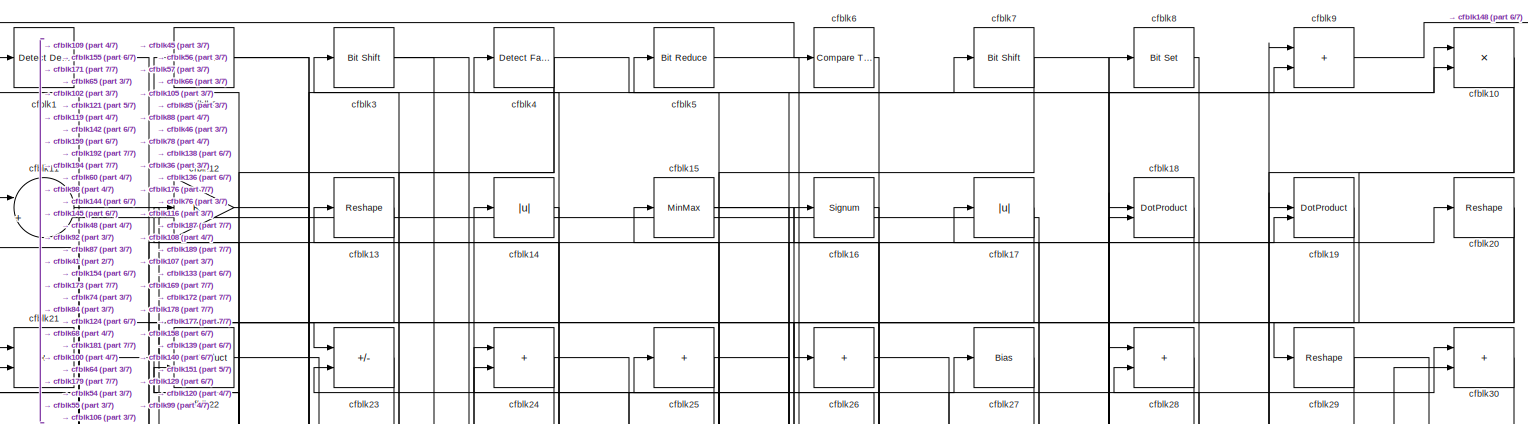
[diagram: root canvas - part 1/7, full width, top band]
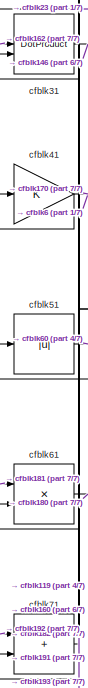
[diagram: root canvas - part 2/7, top left region]
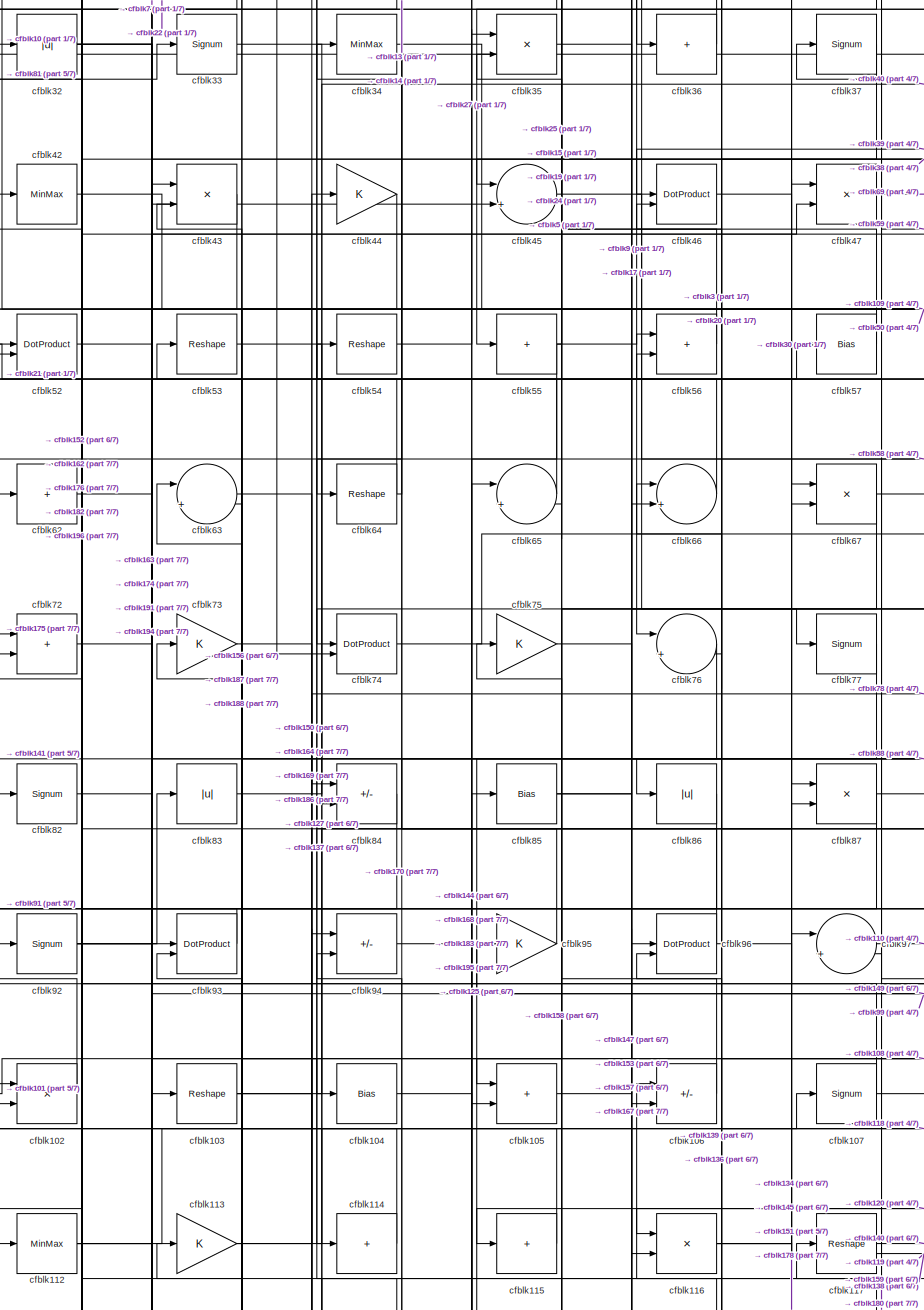
[diagram: root canvas - part 3/7, central region]
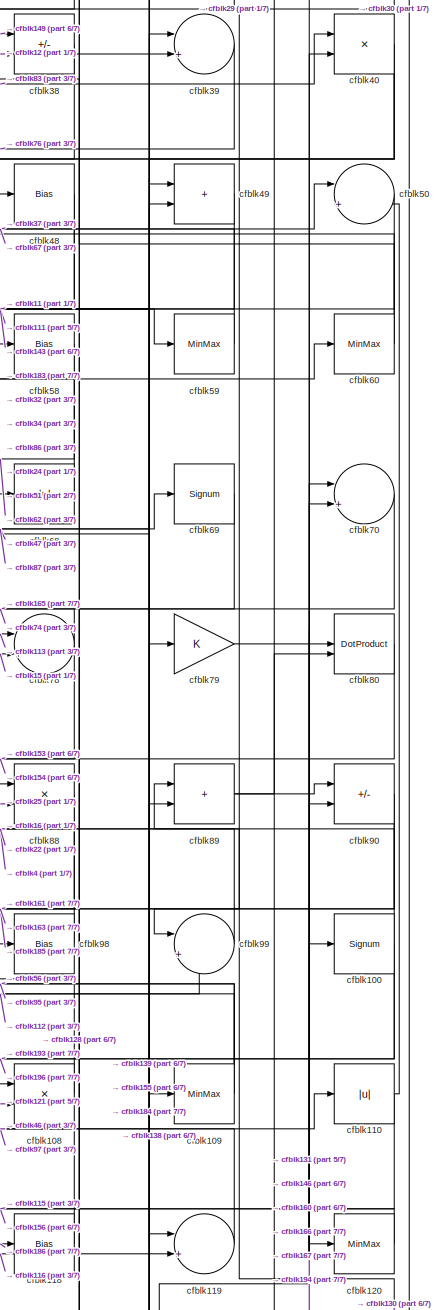
[diagram: root canvas - part 4/7, middle right region]
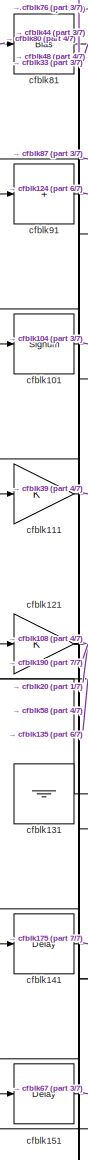
[diagram: root canvas - part 5/7, middle left region]
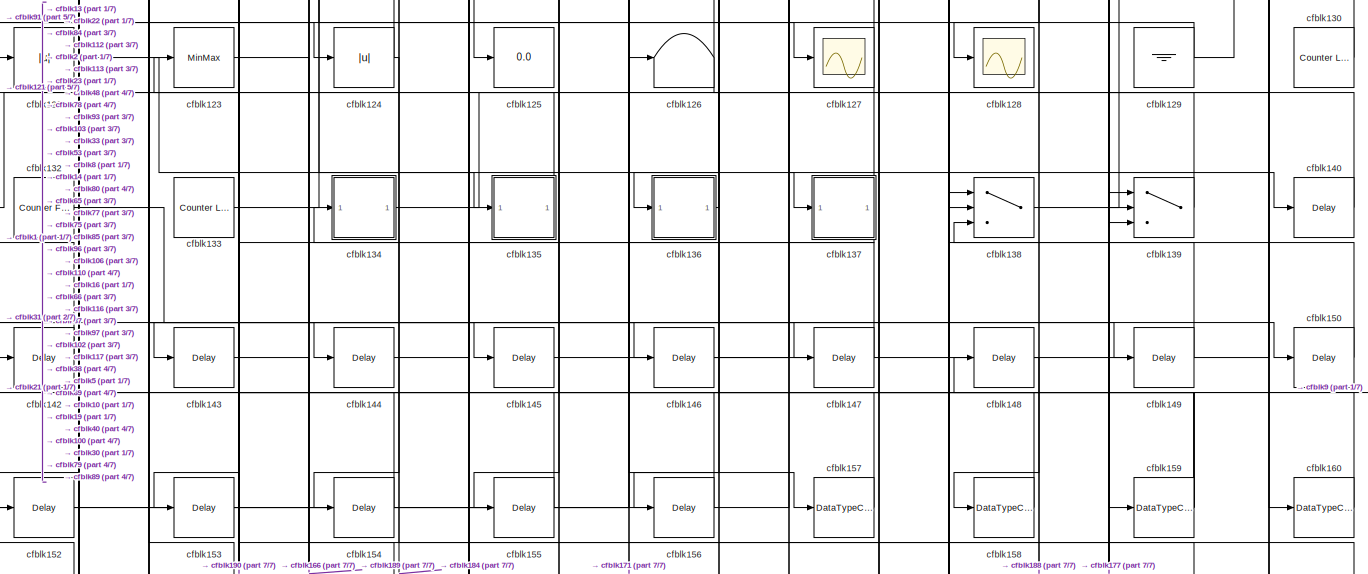
[diagram: root canvas - part 6/7, full width, bottom band]
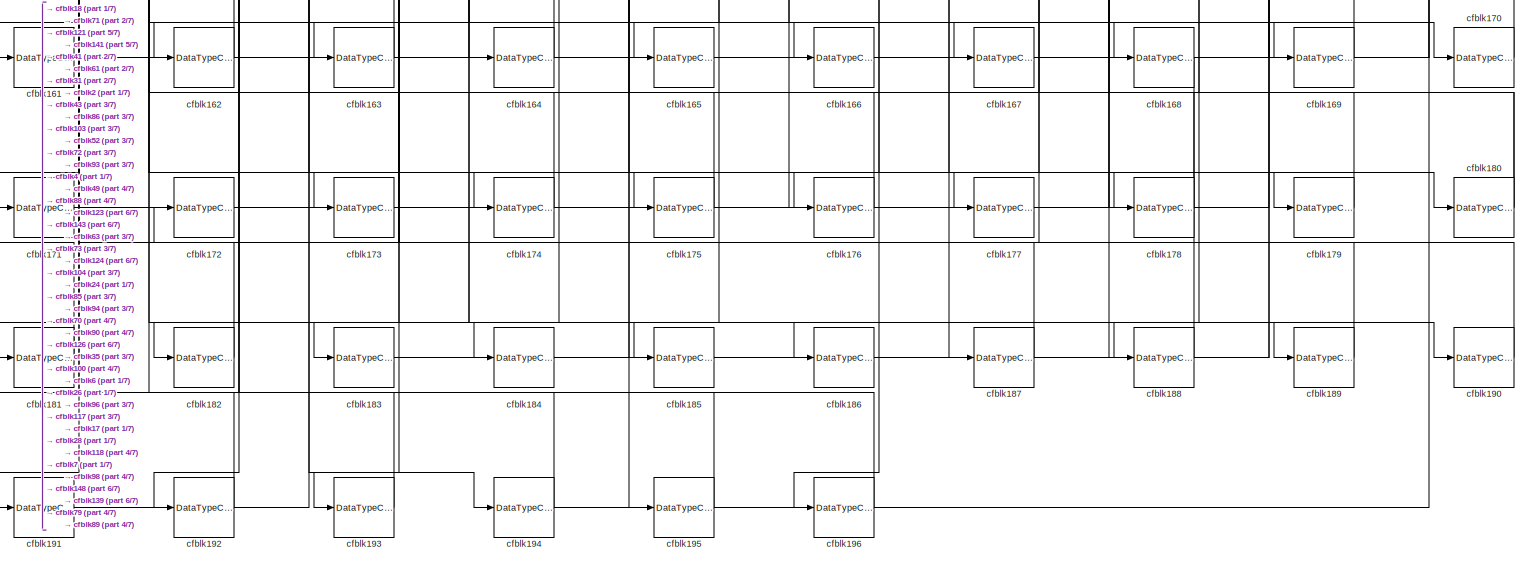
[diagram: root canvas - part 7/7, full width, bottom band]
MODEL slx_3617189a8219
KIND model
CONFIG AbsTol = auto
CONFIG EnableMultiTasking = off
CONFIG FixedStep = auto
CONFIG MaxStep = auto
CONFIG MinStep = auto
CONFIG RelTol = 1e-3
CONFIG SampleTimeConstraint = Unconstrained
CONFIG SolverName = VariableStepAuto
CONFIG StartTime = 0.0
CONFIG StopTime = 10.0
BLOCK [Reference] cfblk1  REF=simulink/Logic and Bit
Operations/Detect
Decrease
  LibrarySourceBlock = hdlsllib/Logic and Bit\nOperations/Detect\nDecrease
  SourceBlock = simulink/Logic and Bit\nOperations/Detect\nDecrease
  SourceType = Detect Decrease
BLOCK [Product] cfblk10
  Inputs = */
  RndMeth = Zero
  SaturateOnIntegerOverflow = on
BLOCK [Signum] cfblk100
BLOCK [Signum] cfblk101
BLOCK [Product] cfblk102
  Inputs = */
  RndMeth = Zero
  SaturateOnIntegerOverflow = on
BLOCK [Reshape] cfblk103
BLOCK [Bias] cfblk104
  Bias = 0.0
  SaturateOnIntegerOverflow = off
BLOCK [Sum] cfblk105
  IconShape = rectangular
BLOCK [Sum] cfblk106
  IconShape = rectangular
  Inputs = +-
BLOCK [Signum] cfblk107
BLOCK [Product] cfblk108
  Inputs = */
  RndMeth = Zero
  SaturateOnIntegerOverflow = on
BLOCK [MinMax] cfblk109
BLOCK [Sum] cfblk11
  Inputs = |++
BLOCK [Abs] cfblk110
  SaturateOnIntegerOverflow = off
BLOCK [Gain] cfblk111
BLOCK [MinMax] cfblk112
BLOCK [Gain] cfblk113
BLOCK [Sum] cfblk114
  IconShape = rectangular
  Inputs = +
BLOCK [Sum] cfblk115
  IconShape = rectangular
  Inputs = +
BLOCK [Product] cfblk116
  Inputs = */
  RndMeth = Zero
  SaturateOnIntegerOverflow = on
BLOCK [Reshape] cfblk117
BLOCK [Bias] cfblk118
  Bias = 0.0
  SaturateOnIntegerOverflow = off
BLOCK [Sum] cfblk119
  Inputs = |++
BLOCK [Gain] cfblk12
BLOCK [MinMax] cfblk120
BLOCK [Gain] cfblk121
BLOCK [Abs] cfblk122
  SaturateOnIntegerOverflow = off
BLOCK [MinMax] cfblk123
BLOCK [Abs] cfblk124
  SaturateOnIntegerOverflow = off
BLOCK [Display] cfblk125
  Decimation = 1
BLOCK [Terminator] cfblk126
BLOCK [Scope] cfblk127
  Floating = off
  NumInputPorts = 1
  ScopeSpecificationString = Simulink.scopes.TimeScopeBlockCfg('CurrentConfiguration', extmgr.ConfigurationSet(extmgr.Configuration('Core','General UI',true),extmgr.Configuration('Core','Source UI',true),extmgr.Configuration('Sources','WiredSimulink',true,'DataLoggingVariableName','ScopeData2','DataLoggingSaveFormat','Array','DataLoggingLimitDataPoints',true,'DataLoggingDecimation','1'),extmgr.Configuration('Visuals','Time Do...<+868ch>
BLOCK [Scope] cfblk128
  Floating = off
  NumInputPorts = 1
  ScopeSpecificationString = Simulink.scopes.TimeScopeBlockCfg('CurrentConfiguration', extmgr.ConfigurationSet(extmgr.Configuration('Core','General UI',true),extmgr.Configuration('Core','Source UI',true),extmgr.Configuration('Sources','WiredSimulink',true,'DataLoggingVariableName','ScopeData2','DataLoggingSaveFormat','Array','DataLoggingLimitDataPoints',true,'DataLoggingDecimation','1'),extmgr.Configuration('Visuals','Time Do...<+868ch>
BLOCK [Ground] cfblk129
BLOCK [Reshape] cfblk13
BLOCK [Reference] cfblk130  REF=hdlsllib/Sources/Counter
Limited
  SourceBlock = hdlsllib/Sources/Counter\nLimited
  SourceType = Counter Limited
BLOCK [Ground] cfblk131
BLOCK [Reference] cfblk132  REF=hdlsllib/Sources/Counter
Free-Running
  SourceBlock = hdlsllib/Sources/Counter\nFree-Running
  SourceType = Counter Free-Running
BLOCK [Reference] cfblk133  REF=hdlsllib/Sources/Counter
Limited
  SourceBlock = hdlsllib/Sources/Counter\nLimited
  SourceType = Counter Limited
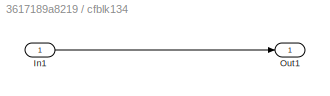
BLOCK [SubSystem] cfblk134
  LibrarySourceBlock = hdlsllib/Ports &\nSubsystems/Subsystem
BLOCK [Inport] cfblk134/In1
BLOCK [Outport] cfblk134/Out1
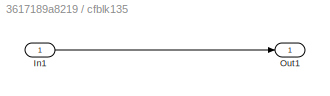
BLOCK [SubSystem] cfblk135
  LibrarySourceBlock = hdlsllib/Ports &\nSubsystems/Subsystem
BLOCK [Inport] cfblk135/In1
BLOCK [Outport] cfblk135/Out1
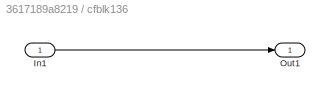
BLOCK [SubSystem] cfblk136
  LibrarySourceBlock = hdlsllib/Ports &\nSubsystems/Subsystem
BLOCK [Inport] cfblk136/In1
BLOCK [Outport] cfblk136/Out1
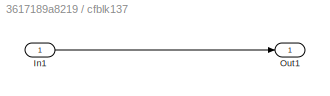
BLOCK [SubSystem] cfblk137
  LibrarySourceBlock = hdlsllib/Ports &\nSubsystems/Subsystem
BLOCK [Inport] cfblk137/In1
BLOCK [Outport] cfblk137/Out1
BLOCK [Switch] cfblk138
  InputSameDT = off
  SaturateOnIntegerOverflow = off
BLOCK [Switch] cfblk139
  InputSameDT = off
  SaturateOnIntegerOverflow = off
BLOCK [Abs] cfblk14
  SaturateOnIntegerOverflow = off
BLOCK [Delay] cfblk140
  InputPortMap = u0
  SampleTime = 1
BLOCK [Delay] cfblk141
  InputPortMap = u0
  SampleTime = 1
BLOCK [Delay] cfblk142
  InputPortMap = u0
  SampleTime = 1
BLOCK [Delay] cfblk143
  InputPortMap = u0
  SampleTime = 1
BLOCK [Delay] cfblk144
  InputPortMap = u0
  SampleTime = 1
BLOCK [Delay] cfblk145
  InputPortMap = u0
  SampleTime = 1
BLOCK [Delay] cfblk146
  InputPortMap = u0
  SampleTime = 1
BLOCK [Delay] cfblk147
  InputPortMap = u0
  SampleTime = 1
BLOCK [Delay] cfblk148
  InputPortMap = u0
  SampleTime = 1
BLOCK [Delay] cfblk149
  InputPortMap = u0
  SampleTime = 1
BLOCK [MinMax] cfblk15
BLOCK [Delay] cfblk150
  InputPortMap = u0
  SampleTime = 1
BLOCK [Delay] cfblk151
  InputPortMap = u0
  SampleTime = 1
BLOCK [Delay] cfblk152
  InputPortMap = u0
  SampleTime = 1
BLOCK [Delay] cfblk153
  InputPortMap = u0
  SampleTime = 1
BLOCK [Delay] cfblk154
  InputPortMap = u0
  SampleTime = 1
BLOCK [Delay] cfblk155
  InputPortMap = u0
  SampleTime = 1
BLOCK [Delay] cfblk156
  InputPortMap = u0
  SampleTime = 1
BLOCK [DataTypeConversion] cfblk157
  OutDataTypeStr = uint8
  RndMeth = Floor
  SaturateOnIntegerOverflow = off
BLOCK [DataTypeConversion] cfblk158
  OutDataTypeStr = uint8
  RndMeth = Floor
  SaturateOnIntegerOverflow = off
BLOCK [DataTypeConversion] cfblk159
  RndMeth = Floor
  SaturateOnIntegerOverflow = off
BLOCK [Signum] cfblk16
BLOCK [DataTypeConversion] cfblk160
  OutDataTypeStr = uint8
  RndMeth = Floor
  SaturateOnIntegerOverflow = off
BLOCK [DataTypeConversion] cfblk161
  OutDataTypeStr = uint8
  RndMeth = Floor
  SaturateOnIntegerOverflow = off
BLOCK [DataTypeConversion] cfblk162
  OutDataTypeStr = uint8
  RndMeth = Floor
  SaturateOnIntegerOverflow = off
BLOCK [DataTypeConversion] cfblk163
  OutDataTypeStr = uint8
  RndMeth = Floor
  SaturateOnIntegerOverflow = off
BLOCK [DataTypeConversion] cfblk164
  OutDataTypeStr = uint8
  RndMeth = Floor
  SaturateOnIntegerOverflow = off
BLOCK [DataTypeConversion] cfblk165
  RndMeth = Floor
  SaturateOnIntegerOverflow = off
BLOCK [DataTypeConversion] cfblk166
  OutDataTypeStr = uint8
  RndMeth = Floor
  SaturateOnIntegerOverflow = off
BLOCK [DataTypeConversion] cfblk167
  OutDataTypeStr = uint8
  RndMeth = Floor
  SaturateOnIntegerOverflow = off
BLOCK [DataTypeConversion] cfblk168
  OutDataTypeStr = uint8
  RndMeth = Floor
  SaturateOnIntegerOverflow = off
BLOCK [DataTypeConversion] cfblk169
  OutDataTypeStr = uint8
  RndMeth = Floor
  SaturateOnIntegerOverflow = off
BLOCK [Abs] cfblk17
  SaturateOnIntegerOverflow = off
BLOCK [DataTypeConversion] cfblk170
  OutDataTypeStr = uint8
  RndMeth = Floor
  SaturateOnIntegerOverflow = off
BLOCK [DataTypeConversion] cfblk171
  OutDataTypeStr = uint8
  RndMeth = Floor
  SaturateOnIntegerOverflow = off
BLOCK [DataTypeConversion] cfblk172
  OutDataTypeStr = uint8
  RndMeth = Floor
  SaturateOnIntegerOverflow = off
BLOCK [DataTypeConversion] cfblk173
  OutDataTypeStr = uint8
  RndMeth = Floor
  SaturateOnIntegerOverflow = off
BLOCK [DataTypeConversion] cfblk174
  OutDataTypeStr = uint8
  RndMeth = Floor
  SaturateOnIntegerOverflow = off
BLOCK [DataTypeConversion] cfblk175
  OutDataTypeStr = uint8
  RndMeth = Floor
  SaturateOnIntegerOverflow = off
BLOCK [DataTypeConversion] cfblk176
  OutDataTypeStr = uint8
  RndMeth = Floor
  SaturateOnIntegerOverflow = off
BLOCK [DataTypeConversion] cfblk177
  OutDataTypeStr = uint8
  RndMeth = Floor
  SaturateOnIntegerOverflow = off
BLOCK [DataTypeConversion] cfblk178
  OutDataTypeStr = uint8
  RndMeth = Floor
  SaturateOnIntegerOverflow = off
BLOCK [DataTypeConversion] cfblk179
  OutDataTypeStr = uint8
  RndMeth = Floor
  SaturateOnIntegerOverflow = off
BLOCK [DotProduct] cfblk18
  OutDataTypeStr = Inherit: Inherit via internal rule
BLOCK [DataTypeConversion] cfblk180
  RndMeth = Floor
  SaturateOnIntegerOverflow = off
BLOCK [DataTypeConversion] cfblk181
  OutDataTypeStr = uint8
  RndMeth = Floor
  SaturateOnIntegerOverflow = off
BLOCK [DataTypeConversion] cfblk182
  OutDataTypeStr = uint8
  RndMeth = Floor
  SaturateOnIntegerOverflow = off
BLOCK [DataTypeConversion] cfblk183
  OutDataTypeStr = uint8
  RndMeth = Floor
  SaturateOnIntegerOverflow = off
BLOCK [DataTypeConversion] cfblk184
  OutDataTypeStr = uint8
  RndMeth = Floor
  SaturateOnIntegerOverflow = off
BLOCK [DataTypeConversion] cfblk185
  OutDataTypeStr = uint8
  RndMeth = Floor
  SaturateOnIntegerOverflow = off
BLOCK [DataTypeConversion] cfblk186
  OutDataTypeStr = uint8
  RndMeth = Floor
  SaturateOnIntegerOverflow = off
BLOCK [DataTypeConversion] cfblk187
  OutDataTypeStr = uint8
  RndMeth = Floor
  SaturateOnIntegerOverflow = off
BLOCK [DataTypeConversion] cfblk188
  OutDataTypeStr = uint8
  RndMeth = Floor
  SaturateOnIntegerOverflow = off
BLOCK [DataTypeConversion] cfblk189
  OutDataTypeStr = uint8
  RndMeth = Floor
  SaturateOnIntegerOverflow = off
BLOCK [DotProduct] cfblk19
  OutDataTypeStr = Inherit: Inherit via internal rule
BLOCK [DataTypeConversion] cfblk190
  OutDataTypeStr = uint8
  RndMeth = Floor
  SaturateOnIntegerOverflow = off
BLOCK [DataTypeConversion] cfblk191
  OutDataTypeStr = uint8
  RndMeth = Floor
  SaturateOnIntegerOverflow = off
BLOCK [DataTypeConversion] cfblk192
  OutDataTypeStr = uint8
  RndMeth = Floor
  SaturateOnIntegerOverflow = off
BLOCK [DataTypeConversion] cfblk193
  OutDataTypeStr = uint8
  RndMeth = Floor
  SaturateOnIntegerOverflow = off
BLOCK [DataTypeConversion] cfblk194
  RndMeth = Floor
  SaturateOnIntegerOverflow = off
BLOCK [DataTypeConversion] cfblk195
  OutDataTypeStr = uint8
  RndMeth = Floor
  SaturateOnIntegerOverflow = off
BLOCK [DataTypeConversion] cfblk196
  OutDataTypeStr = uint8
  RndMeth = Floor
  SaturateOnIntegerOverflow = off
BLOCK [Reference] cfblk2  REF=simulink/Logic and Bit
Operations/Extract Bits
  LibrarySourceBlock = hdlsllib/Logic and Bit\nOperations/Extract Bits
  SourceBlock = simulink/Logic and Bit\nOperations/Extract Bits
  SourceType = Extract Bits
BLOCK [Reshape] cfblk20
BLOCK [Sum] cfblk21
  IconShape = rectangular
BLOCK [DotProduct] cfblk22
  OutDataTypeStr = Inherit: Inherit via internal rule
BLOCK [Sum] cfblk23
  IconShape = rectangular
  Inputs = +-
BLOCK [Sum] cfblk24
  IconShape = rectangular
BLOCK [Sum] cfblk25
  IconShape = rectangular
  Inputs = +
BLOCK [Sum] cfblk26
  IconShape = rectangular
  Inputs = +
BLOCK [Bias] cfblk27
  Bias = 0.0
  SaturateOnIntegerOverflow = off
BLOCK [Sum] cfblk28
  IconShape = rectangular
BLOCK [Reshape] cfblk29
BLOCK [Reference] cfblk3  REF=hdlsllib/Logic and Bit
Operations/Bit Shift
  SourceBlock = hdlsllib/Logic and Bit\nOperations/Bit Shift
  SourceType = Bit Shift
BLOCK [Sum] cfblk30
  IconShape = rectangular
BLOCK [DotProduct] cfblk31
  OutDataTypeStr = Inherit: Inherit via internal rule
BLOCK [Abs] cfblk32
  SaturateOnIntegerOverflow = off
BLOCK [Signum] cfblk33
BLOCK [MinMax] cfblk34
BLOCK [Product] cfblk35
  Inputs = */
  RndMeth = Zero
  SaturateOnIntegerOverflow = on
BLOCK [Sum] cfblk36
  IconShape = rectangular
  Inputs = +
BLOCK [Signum] cfblk37
BLOCK [Sum] cfblk38
  IconShape = rectangular
  Inputs = +-
BLOCK [Sum] cfblk39
  Inputs = |++
BLOCK [Reference] cfblk4  REF=hdlsllib/Logic and Bit
Operations/Detect Fall
Negative
  SourceBlock = hdlsllib/Logic and Bit\nOperations/Detect Fall\nNegative
  SourceType = Detect Fall Negative
BLOCK [Product] cfblk40
  Inputs = */
  RndMeth = Zero
  SaturateOnIntegerOverflow = on
BLOCK [Gain] cfblk41
BLOCK [MinMax] cfblk42
BLOCK [Product] cfblk43
  Inputs = */
  RndMeth = Zero
  SaturateOnIntegerOverflow = on
BLOCK [Gain] cfblk44
BLOCK [Sum] cfblk45
  Inputs = |++
BLOCK [DotProduct] cfblk46
  OutDataTypeStr = Inherit: Inherit via internal rule
BLOCK [Product] cfblk47
  Inputs = */
  RndMeth = Zero
  SaturateOnIntegerOverflow = on
BLOCK [Bias] cfblk48
  Bias = 0.0
  SaturateOnIntegerOverflow = off
BLOCK [Sum] cfblk49
  IconShape = rectangular
BLOCK [Reference] cfblk5  REF=hdlsllib/Logic and Bit
Operations/Bit Reduce
  SourceBlock = hdlsllib/Logic and Bit\nOperations/Bit Reduce
  SourceType = Bit Reduce
BLOCK [Sum] cfblk50
  Inputs = |++
BLOCK [Abs] cfblk51
  SaturateOnIntegerOverflow = off
BLOCK [DotProduct] cfblk52
  OutDataTypeStr = Inherit: Inherit via internal rule
BLOCK [Reshape] cfblk53
BLOCK [Reshape] cfblk54
BLOCK [Sum] cfblk55
  IconShape = rectangular
  Inputs = +
BLOCK [Sum] cfblk56
  IconShape = rectangular
BLOCK [Bias] cfblk57
  Bias = 0.0
  SaturateOnIntegerOverflow = off
BLOCK [Bias] cfblk58
  Bias = 0.0
  SaturateOnIntegerOverflow = off
BLOCK [MinMax] cfblk59
BLOCK [Reference] cfblk6  REF=hdlsllib/Logic and Bit
Operations/Compare
To Zero
  SourceBlock = hdlsllib/Logic and Bit\nOperations/Compare\nTo Zero
  SourceType = Compare To Zero
BLOCK [MinMax] cfblk60
BLOCK [Product] cfblk61
  Inputs = */
  RndMeth = Zero
  SaturateOnIntegerOverflow = on
BLOCK [Sum] cfblk62
  IconShape = rectangular
  Inputs = +
BLOCK [Sum] cfblk63
  Inputs = |++
BLOCK [Reshape] cfblk64
BLOCK [Sum] cfblk65
  Inputs = |++
BLOCK [Sum] cfblk66
  Inputs = |++
BLOCK [Product] cfblk67
  Inputs = */
  RndMeth = Zero
  SaturateOnIntegerOverflow = on
BLOCK [Abs] cfblk68
  SaturateOnIntegerOverflow = off
BLOCK [Signum] cfblk69
BLOCK [Reference] cfblk7  REF=hdlsllib/Logic and Bit
Operations/Bit Shift
  SourceBlock = hdlsllib/Logic and Bit\nOperations/Bit Shift
  SourceType = Bit Shift
BLOCK [Sum] cfblk70
  Inputs = |++
BLOCK [Sum] cfblk71
  IconShape = rectangular
BLOCK [Sum] cfblk72
  IconShape = rectangular
BLOCK [Gain] cfblk73
BLOCK [DotProduct] cfblk74
  OutDataTypeStr = Inherit: Inherit via internal rule
BLOCK [Gain] cfblk75
BLOCK [Sum] cfblk76
  Inputs = |++
BLOCK [Signum] cfblk77
BLOCK [Sum] cfblk78
  Inputs = |++
BLOCK [Gain] cfblk79
BLOCK [Reference] cfblk8  REF=simulink/Logic and Bit
Operations/Bit Set
  LibrarySourceBlock = hdlsllib/Logic and Bit\nOperations/Bit Set
  SourceBlock = simulink/Logic and Bit\nOperations/Bit Set
  SourceType = Bit Set
BLOCK [DotProduct] cfblk80
  OutDataTypeStr = Inherit: Inherit via internal rule
BLOCK [Bias] cfblk81
  Bias = 0.0
  SaturateOnIntegerOverflow = off
BLOCK [Signum] cfblk82
BLOCK [Abs] cfblk83
  SaturateOnIntegerOverflow = off
BLOCK [Sum] cfblk84
  IconShape = rectangular
  Inputs = +-
BLOCK [Bias] cfblk85
  Bias = 0.0
  SaturateOnIntegerOverflow = off
BLOCK [Abs] cfblk86
  SaturateOnIntegerOverflow = off
BLOCK [Product] cfblk87
  Inputs = */
  RndMeth = Zero
  SaturateOnIntegerOverflow = on
BLOCK [Product] cfblk88
  Inputs = */
  RndMeth = Zero
  SaturateOnIntegerOverflow = on
BLOCK [Sum] cfblk89
  IconShape = rectangular
BLOCK [Sum] cfblk9
  IconShape = rectangular
BLOCK [Sum] cfblk90
  IconShape = rectangular
  Inputs = +-
BLOCK [Sum] cfblk91
  IconShape = rectangular
  Inputs = +
BLOCK [Signum] cfblk92
BLOCK [DotProduct] cfblk93
  OutDataTypeStr = Inherit: Inherit via internal rule
BLOCK [Sum] cfblk94
  IconShape = rectangular
  Inputs = +-
BLOCK [Gain] cfblk95
BLOCK [DotProduct] cfblk96
  OutDataTypeStr = Inherit: Inherit via internal rule
BLOCK [Sum] cfblk97
  Inputs = |++
BLOCK [Bias] cfblk98
  Bias = 0.0
  SaturateOnIntegerOverflow = off
BLOCK [Sum] cfblk99
  Inputs = |++
NET cfblk100:1 -> cfblk193:1, cfblk196:1, cfblk4:1
LINE cfblk101:1 -> cfblk104:1
LINE cfblk102:1 -> cfblk82:1
NET cfblk103:1 -> cfblk150:1, cfblk47:1
LINE cfblk104:1 -> cfblk195:1
LINE cfblk105:1 -> cfblk19:2
LINE cfblk106:1 -> cfblk15:1
NET cfblk107:1 -> cfblk10:1, cfblk32:1
LINE cfblk108:1 -> cfblk11:2
NET cfblk109:1 -> cfblk11:1, cfblk56:2, cfblk95:1
NET cfblk10:1 -> cfblk139:3, cfblk29:1
NET cfblk110:1 -> cfblk156:1, cfblk50:2
LINE cfblk111:1 -> cfblk39:2
NET cfblk112:1 -> cfblk149:1, cfblk44:1, cfblk99:2
NET cfblk113:1 -> cfblk107:1, cfblk78:1
LINE cfblk114:1 -> cfblk73:1
LINE cfblk115:1 -> cfblk42:1
NET cfblk116:1 -> cfblk119:2, cfblk138:2, cfblk30:1
LINE cfblk117:1 -> cfblk140:1
LINE cfblk118:1 -> cfblk46:2
LINE cfblk119:1 -> cfblk51:1
LINE cfblk11:1 -> cfblk119:1
LINE cfblk120:1 -> cfblk115:1
NET cfblk121:1 -> cfblk108:2, cfblk190:1, cfblk20:1, cfblk58:1
LINE cfblk122:1 -> cfblk135:1
LINE cfblk123:1 -> cfblk189:1
NET cfblk124:1 -> cfblk14:1, cfblk184:1
NET cfblk129:1 -> cfblk122:1, cfblk30:2
LINE cfblk12:1 -> cfblk48:1
LINE cfblk130:1 -> cfblk89:1
NET cfblk131:1 -> cfblk80:1, cfblk81:1
LINE cfblk132:1 -> cfblk159:1
LINE cfblk133:1 -> cfblk8:1
LINE cfblk134/In1:1 -> cfblk134/Out1:1
LINE cfblk134:1 -> cfblk97:1
LINE cfblk135/In1:1 -> cfblk135/Out1:1
LINE cfblk135:1 -> cfblk121:1
LINE cfblk136/In1:1 -> cfblk136/Out1:1
LINE cfblk136:1 -> cfblk66:1
LINE cfblk137/In1:1 -> cfblk137/Out1:1
NET cfblk137:1 -> cfblk102:1, cfblk134:1
LINE cfblk138:1 -> cfblk100:1
LINE cfblk139:1 -> cfblk106:1
LINE cfblk13:1 -> cfblk142:1
LINE cfblk140:1 -> cfblk19:1
LINE cfblk141:1 -> cfblk175:1
LINE cfblk142:1 -> cfblk1:1
LINE cfblk143:1 -> cfblk166:1
LINE cfblk144:1 -> cfblk65:1
LINE cfblk145:1 -> cfblk87:2
LINE cfblk146:1 -> cfblk40:2
LINE cfblk147:1 -> cfblk93:2
LINE cfblk148:1 -> cfblk188:1
LINE cfblk149:1 -> cfblk38:1
LINE cfblk14:1 -> cfblk64:1
LINE cfblk150:1 -> cfblk138:3
LINE cfblk151:1 -> cfblk67:2
LINE cfblk152:1 -> cfblk106:2
LINE cfblk153:1 -> cfblk66:2
LINE cfblk154:1 -> cfblk23:2
LINE cfblk155:1 -> cfblk21:2
LINE cfblk156:1 -> cfblk53:1
LINE cfblk157:1 -> cfblk96:1
LINE cfblk158:1 -> cfblk75:1
NET cfblk159:1 -> cfblk113:1, cfblk22:2, cfblk96:2, cfblk97:2
NET cfblk15:1 -> cfblk36:1, cfblk78:2
LINE cfblk160:1 -> cfblk31:2
LINE cfblk161:1 -> cfblk79:1
LINE cfblk162:1 -> cfblk31:1
LINE cfblk163:1 -> cfblk43:1
LINE cfblk164:1 -> cfblk43:2
NET cfblk165:1 -> cfblk89:2, cfblk98:1
LINE cfblk166:1 -> cfblk70:1
LINE cfblk167:1 -> cfblk70:2
LINE cfblk168:1 -> cfblk172:1
LINE cfblk169:1 -> cfblk94:1
LINE cfblk16:1 -> cfblk136:1
LINE cfblk170:1 -> cfblk94:2
LINE cfblk171:1 -> cfblk126:1
LINE cfblk172:1 -> cfblk18:1
LINE cfblk173:1 -> cfblk18:2
LINE cfblk174:1 -> cfblk93:1
LINE cfblk175:1 -> cfblk72:1
LINE cfblk176:1 -> cfblk72:2
LINE cfblk177:1 -> cfblk139:1
LINE cfblk178:1 -> cfblk28:1
LINE cfblk179:1 -> cfblk28:2
LINE cfblk17:1 -> cfblk46:1
NET cfblk180:1 -> cfblk117:1, cfblk35:1
LINE cfblk181:1 -> cfblk61:1
LINE cfblk182:1 -> cfblk61:2
LINE cfblk183:1 -> cfblk85:1
LINE cfblk184:1 -> cfblk49:1
LINE cfblk185:1 -> cfblk49:2
LINE cfblk186:1 -> cfblk118:1
LINE cfblk187:1 -> cfblk63:1
LINE cfblk188:1 -> cfblk63:2
LINE cfblk189:1 -> cfblk17:1
LINE cfblk18:1 -> cfblk171:1
LINE cfblk190:1 -> cfblk123:1
LINE cfblk191:1 -> cfblk103:1
LINE cfblk192:1 -> cfblk71:1
LINE cfblk193:1 -> cfblk71:2
NET cfblk194:1 -> cfblk2:1, cfblk90:2
LINE cfblk195:1 -> cfblk52:1
LINE cfblk196:1 -> cfblk52:2
LINE cfblk19:1 -> cfblk65:2
LINE cfblk1:1 -> cfblk26:1
NET cfblk20:1 -> cfblk102:2, cfblk76:2
LINE cfblk21:1 -> cfblk23:1
LINE cfblk22:1 -> cfblk87:1
LINE cfblk23:1 -> cfblk41:1
NET cfblk24:1 -> cfblk179:1, cfblk181:1
NET cfblk25:1 -> cfblk55:1, cfblk88:2
LINE cfblk26:1 -> cfblk187:1
LINE cfblk27:1 -> cfblk116:2
LINE cfblk28:1 -> cfblk177:1
NET cfblk29:1 -> cfblk120:1, cfblk151:1
NET cfblk2:1 -> cfblk144:1, cfblk145:1
LINE cfblk30:1 -> cfblk99:1
LINE cfblk31:1 -> cfblk146:1
NET cfblk32:1 -> cfblk108:1, cfblk59:1, cfblk88:1
LINE cfblk33:1 -> cfblk127:1
LINE cfblk34:1 -> cfblk109:1
LINE cfblk35:1 -> cfblk167:1
LINE cfblk36:1 -> cfblk3:1
LINE cfblk37:1 -> cfblk116:1
LINE cfblk38:1 -> cfblk112:1
LINE cfblk39:1 -> cfblk76:1
NET cfblk3:1 -> cfblk74:2, cfblk84:1
NET cfblk40:1 -> cfblk139:2, cfblk155:1, cfblk68:1
NET cfblk41:1 -> cfblk170:1, cfblk6:1
LINE cfblk42:1 -> cfblk114:1
LINE cfblk43:1 -> cfblk162:1
LINE cfblk44:1 -> cfblk101:1
LINE cfblk45:1 -> cfblk77:1
LINE cfblk46:1 -> cfblk67:1
LINE cfblk47:1 -> cfblk69:1
NET cfblk48:1 -> cfblk111:1, cfblk143:1
LINE cfblk49:1 -> cfblk183:1
NET cfblk4:1 -> cfblk10:2, cfblk173:1, cfblk192:1
LINE cfblk50:1 -> cfblk86:1
LINE cfblk51:1 -> cfblk60:1
LINE cfblk52:1 -> cfblk194:1
LINE cfblk53:1 -> cfblk137:1
LINE cfblk54:1 -> cfblk27:1
NET cfblk55:1 -> cfblk105:2, cfblk35:2, cfblk56:1
LINE cfblk56:1 -> cfblk24:2
LINE cfblk57:1 -> cfblk25:1
LINE cfblk58:1 -> cfblk62:1
LINE cfblk59:1 -> cfblk37:1
LINE cfblk5:1 -> cfblk138:1
NET cfblk60:1 -> cfblk12:1, cfblk38:2
LINE cfblk61:1 -> cfblk180:1
LINE cfblk62:1 -> cfblk57:1
LINE cfblk63:1 -> cfblk186:1
NET cfblk64:1 -> cfblk13:1, cfblk54:1
LINE cfblk65:1 -> cfblk21:1
LINE cfblk66:1 -> cfblk5:1
NET cfblk67:1 -> cfblk105:1, cfblk50:1
LINE cfblk68:1 -> cfblk24:1
LINE cfblk69:1 -> cfblk128:1
LINE cfblk6:1 -> cfblk176:1
LINE cfblk70:1 -> cfblk165:1
LINE cfblk71:1 -> cfblk191:1
LINE cfblk72:1 -> cfblk174:1
LINE cfblk73:1 -> cfblk164:1
LINE cfblk74:1 -> cfblk9:1
LINE cfblk75:1 -> cfblk157:1
LINE cfblk76:1 -> cfblk141:1
LINE cfblk77:1 -> cfblk125:1
NET cfblk78:1 -> cfblk153:1, cfblk74:1
LINE cfblk79:1 -> cfblk160:1
NET cfblk7:1 -> cfblk169:1, cfblk45:1
LINE cfblk80:1 -> cfblk154:1
LINE cfblk81:1 -> cfblk33:1
LINE cfblk82:1 -> cfblk47:2
LINE cfblk83:1 -> cfblk40:1
LINE cfblk84:1 -> cfblk152:1
NET cfblk85:1 -> cfblk147:1, cfblk9:2
LINE cfblk86:1 -> cfblk182:1
NET cfblk87:1 -> cfblk39:1, cfblk91:1
LINE cfblk88:1 -> cfblk163:1
NET cfblk89:1 -> cfblk80:2, cfblk90:1
LINE cfblk8:1 -> cfblk158:1
NET cfblk90:1 -> cfblk161:1, cfblk185:1
LINE cfblk91:1 -> cfblk124:1
NET cfblk92:1 -> cfblk45:2, cfblk7:1, cfblk83:1
LINE cfblk93:1 -> cfblk92:1
LINE cfblk94:1 -> cfblk168:1
LINE cfblk95:1 -> cfblk84:2
NET cfblk96:1 -> cfblk178:1, cfblk34:1
LINE cfblk97:1 -> cfblk110:1
LINE cfblk98:1 -> cfblk22:1
LINE cfblk99:1 -> cfblk16:1
LINE cfblk9:1 -> cfblk148:1
note: NET lines group one-source signal fan-out (src -> all destinations, sorted); 1:1 wires keep LINE
